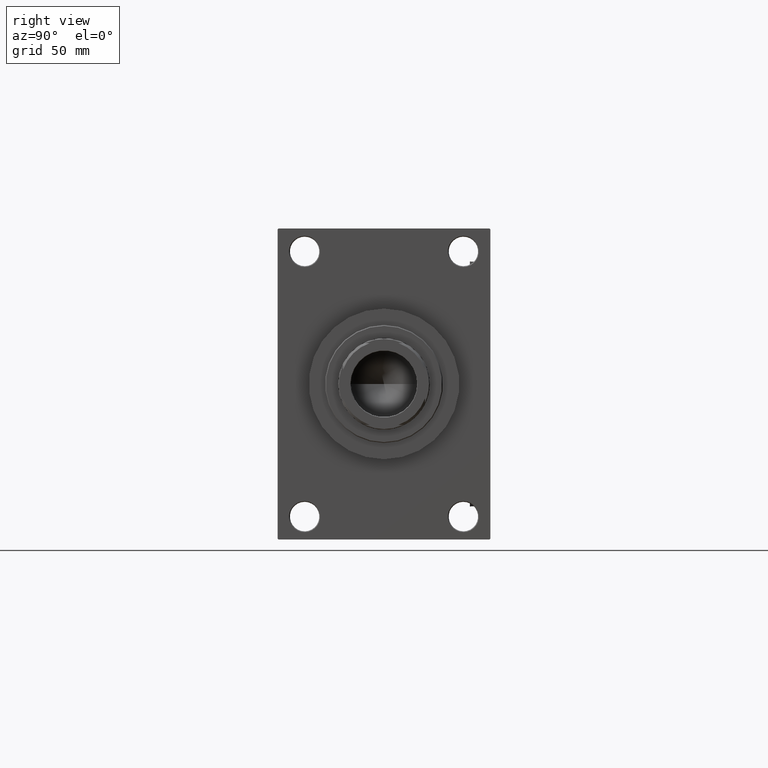
[diagram: clean part render]
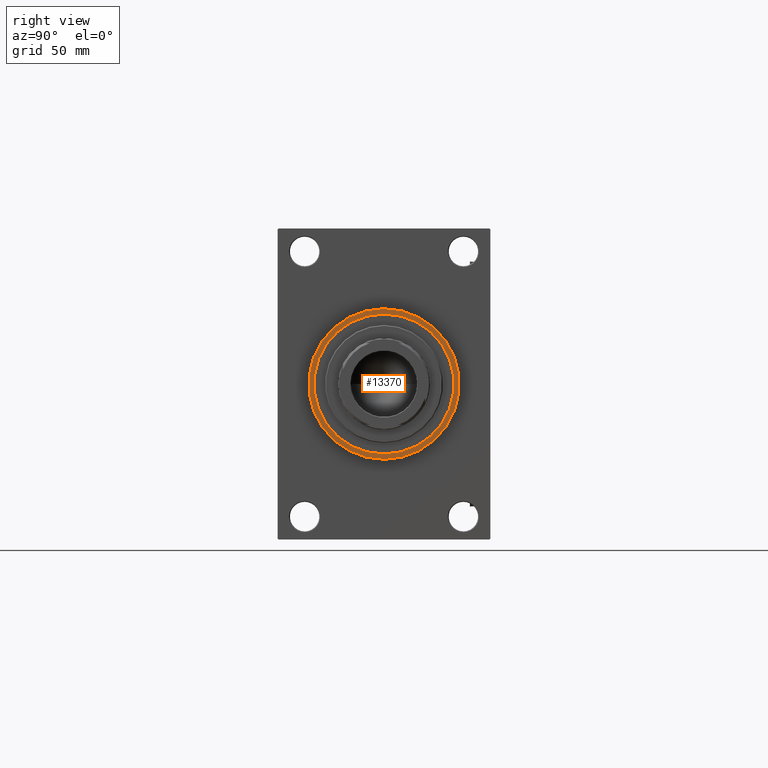
[diagram: same view with one face highlighted and labeled with its STEP entity id]
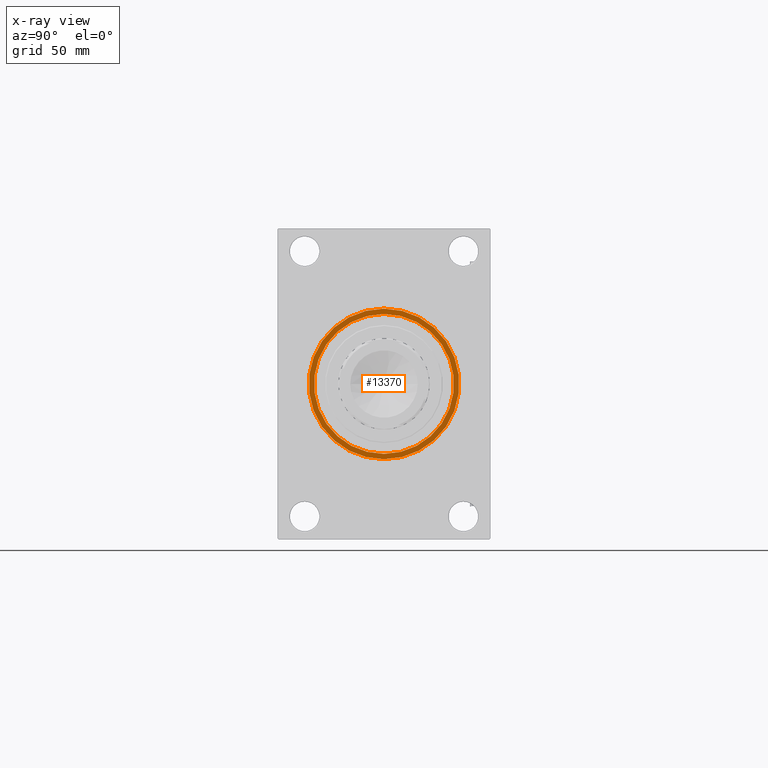
[diagram: x-ray of the same camera — body ghosted, the highlighted face saturated]
A machine part, right view. The second image highlights one B-rep face of the part: STEP entity #13370.
The next image is the same camera in x-ray: the body ghosted, the highlighted face saturated — about 0% of this face is hidden behind the body in this view.
In plain terms, the highlighted planar face has unit normal (1, 0, 0).
Its self-contained STEP definition (entity closure, byte-faithful):
#291 = EDGE_CURVE ( 'NONE', #27636, #20097, #47352, .T. ) ;
#1439 = CIRCLE ( 'NONE', #30496, 42.75000000000000000 ) ;
#2446 = ORIENTED_EDGE ( 'NONE', *, *, #7734, .F. ) ;
#5254 = CARTESIAN_POINT ( 'NONE',  ( 328.0000000000000000, 5.633375276077824704E-15, -46.00000000000000000 ) ) ;
#6475 = CIRCLE ( 'NONE', #33945, 42.75000000000000000 ) ;
#7135 = VERTEX_POINT ( 'NONE', #9174 ) ;
#7160 = AXIS2_PLACEMENT_3D ( 'NONE', #11035, #41861, #22684 ) ;
#7734 = EDGE_CURVE ( 'NONE', #17908, #7135, #6475, .T. ) ;
#8056 = CARTESIAN_POINT ( 'NONE',  ( 328.0000000000000000, 0.000000000000000000, 0.000000000000000000 ) ) ;
#9174 = CARTESIAN_POINT ( 'NONE',  ( 328.0000000000000000, 0.000000000000000000, -42.75000000000000000 ) ) ;
#11035 = CARTESIAN_POINT ( 'NONE',  ( 328.0000000000000000, 0.000000000000000000, 0.000000000000000000 ) ) ;
#11326 = CARTESIAN_POINT ( 'NONE',  ( 328.0000000000000000, 0.000000000000000000, 0.000000000000000000 ) ) ;
#13370 = ADVANCED_FACE ( 'NONE', ( #18364, #37823 ), #41361, .T. ) ;
#14472 = DIRECTION ( 'NONE',  ( 0.000000000000000000, 0.000000000000000000, -1.000000000000000000 ) ) ;
#15835 = CARTESIAN_POINT ( 'NONE',  ( 328.0000000000000000, 0.000000000000000000, 0.000000000000000000 ) ) ;
#16090 = DIRECTION ( 'NONE',  ( 0.000000000000000000, 0.000000000000000000, -1.000000000000000000 ) ) ;
#17908 = VERTEX_POINT ( 'NONE', #32196 ) ;
#18364 = FACE_BOUND ( 'NONE', #39252, .T. ) ;
#18415 = EDGE_LOOP ( 'NONE', ( #40222, #26111 ) ) ;
#19968 = AXIS2_PLACEMENT_3D ( 'NONE', #11326, #27759, #39115 ) ;
#20097 = VERTEX_POINT ( 'NONE', #32903 ) ;
#20714 = ORIENTED_EDGE ( 'NONE', *, *, #45587, .F. ) ;
#22684 = DIRECTION ( 'NONE',  ( 0.000000000000000000, 0.000000000000000000, -1.000000000000000000 ) ) ;
#23930 = DIRECTION ( 'NONE',  ( 1.000000000000000000, 0.000000000000000000, 0.000000000000000000 ) ) ;
#25163 = DIRECTION ( 'NONE',  ( 1.000000000000000000, 0.000000000000000000, 0.000000000000000000 ) ) ;
#26111 = ORIENTED_EDGE ( 'NONE', *, *, #291, .T. ) ;
#27636 = VERTEX_POINT ( 'NONE', #5254 ) ;
#27759 = DIRECTION ( 'NONE',  ( 1.000000000000000000, 0.000000000000000000, 0.000000000000000000 ) ) ;
#30496 = AXIS2_PLACEMENT_3D ( 'NONE', #15835, #23930, #16090 ) ;
#32196 = CARTESIAN_POINT ( 'NONE',  ( 328.0000000000000000, 5.235365066354935472E-15, 42.75000000000000000 ) ) ;
#32496 = DIRECTION ( 'NONE',  ( 0.000000000000000000, 0.000000000000000000, -1.000000000000000000 ) ) ;
#32903 = CARTESIAN_POINT ( 'NONE',  ( 328.0000000000000000, 0.000000000000000000, 46.00000000000000000 ) ) ;
#33945 = AXIS2_PLACEMENT_3D ( 'NONE', #8056, #25163, #32496 ) ;
#37709 = DIRECTION ( 'NONE',  ( 1.000000000000000000, 0.000000000000000000, 0.000000000000000000 ) ) ;
#37823 = FACE_OUTER_BOUND ( 'NONE', #18415, .T. ) ;
#39115 = DIRECTION ( 'NONE',  ( 0.000000000000000000, 0.000000000000000000, -1.000000000000000000 ) ) ;
#39252 = EDGE_LOOP ( 'NONE', ( #20714, #2446 ) ) ;
#40222 = ORIENTED_EDGE ( 'NONE', *, *, #43250, .T. ) ;
#40586 = CARTESIAN_POINT ( 'NONE',  ( 328.0000000000000000, 0.000000000000000000, 0.000000000000000000 ) ) ;
#41361 = PLANE ( 'NONE',  #7160 ) ;
#41861 = DIRECTION ( 'NONE',  ( 1.000000000000000000, 0.000000000000000000, 0.000000000000000000 ) ) ;
#42542 = CIRCLE ( 'NONE', #43328, 46.00000000000000000 ) ;
#43250 = EDGE_CURVE ( 'NONE', #20097, #27636, #42542, .T. ) ;
#43328 = AXIS2_PLACEMENT_3D ( 'NONE', #40586, #37709, #14472 ) ;
#45587 = EDGE_CURVE ( 'NONE', #7135, #17908, #1439, .T. ) ;
#47352 = CIRCLE ( 'NONE', #19968, 46.00000000000000000 ) ;